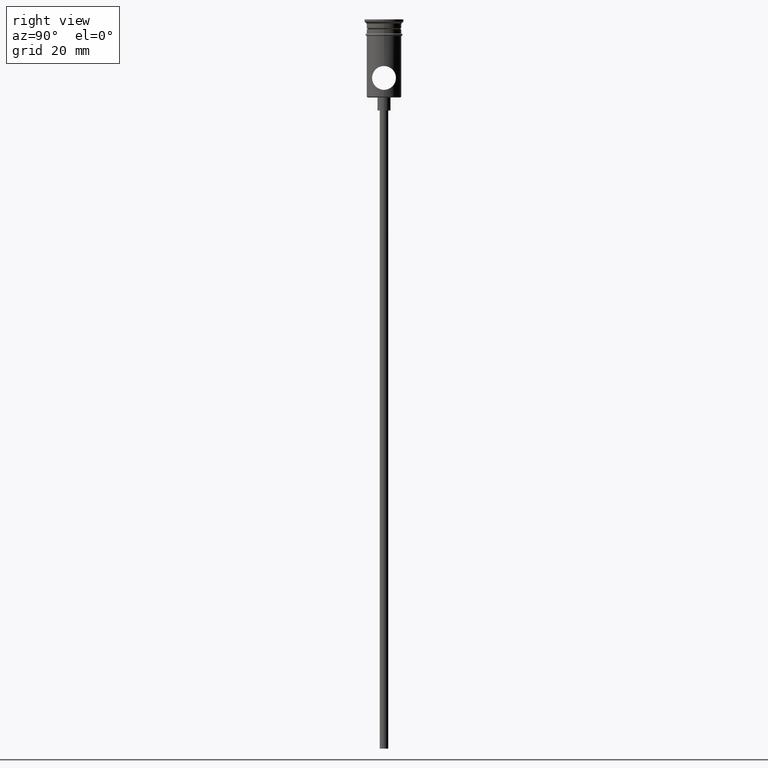
[diagram: clean part render]
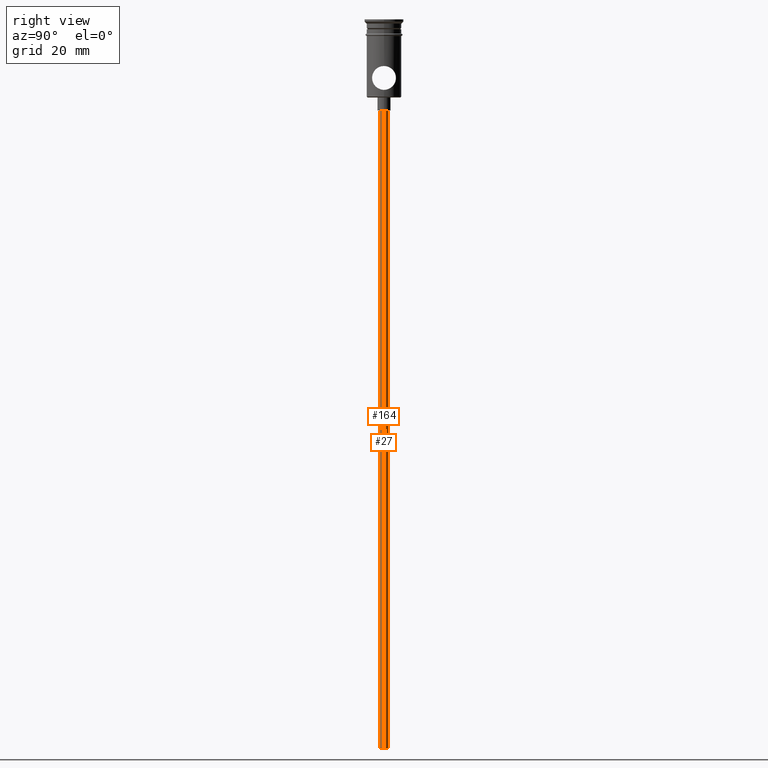
[diagram: same view with one multi-face feature highlighted, each face labeled with its STEP entity id]
A machine part, right view. The highlighted faces form ONE feature: a constant-radius fillet chain: 2 tangent blend faces with common blend radius 1 mm. The faces share edges in the B-rep.
Their STEP definitions:
[1] entity #27 (Cylinder):
#19 = EDGE_CURVE ( 'NONE', #655, #998, #1380, .T. ) ;
#27 = ADVANCED_FACE ( 'NONE', ( #329 ), #989, .T. ) ;
#90 = DIRECTION ( 'NONE',  ( -1.000000000000000000, 0.000000000000000000, 0.000000000000000000 ) ) ;
#193 = AXIS2_PLACEMENT_3D ( 'NONE', #743, #960, #90 ) ;
#210 = DIRECTION ( 'NONE',  ( -0.000000000000000000, -0.000000000000000000, 1.000000000000000000 ) ) ;
#222 = EDGE_CURVE ( 'NONE', #655, #767, #607, .T. ) ;
#257 = ORIENTED_EDGE ( 'NONE', *, *, #1396, .T. ) ;
#258 = DIRECTION ( 'NONE',  ( -0.000000000000000000, -0.000000000000000000, 1.000000000000000000 ) ) ;
#325 = CARTESIAN_POINT ( 'NONE',  ( -0.9999999999999997780, 1.224646799147352961E-16, -20.99999999999999645 ) ) ;
#329 = FACE_OUTER_BOUND ( 'NONE', #407, .T. ) ;
#407 = EDGE_LOOP ( 'NONE', ( #658, #510, #257, #1152 ) ) ;
#447 = DIRECTION ( 'NONE',  ( -1.000000000000000000, 0.000000000000000000, 0.000000000000000000 ) ) ;
#465 = EDGE_CURVE ( 'NONE', #998, #898, #592, .T. ) ;
#510 = ORIENTED_EDGE ( 'NONE', *, *, #222, .T. ) ;
#537 = DIRECTION ( 'NONE',  ( 1.000000000000000000, 0.000000000000000000, 0.000000000000000000 ) ) ;
#551 = CARTESIAN_POINT ( 'NONE',  ( 0.000000000000000000, 0.000000000000000000, -20.99999999999999645 ) ) ;
#592 = LINE ( 'NONE', #1237, #1093 ) ;
#606 = AXIS2_PLACEMENT_3D ( 'NONE', #551, #1120, #447 ) ;
#607 = LINE ( 'NONE', #834, #1148 ) ;
#618 = CARTESIAN_POINT ( 'NONE',  ( -0.9999999999999997780, 1.224646799147352961E-16, -167.9999999999999716 ) ) ;
#655 = VERTEX_POINT ( 'NONE', #618 ) ;
#658 = ORIENTED_EDGE ( 'NONE', *, *, #19, .F. ) ;
#743 = CARTESIAN_POINT ( 'NONE',  ( 0.000000000000000000, 0.000000000000000000, -167.9999999999999716 ) ) ;
#756 = CARTESIAN_POINT ( 'NONE',  ( 0.9999999999999997780, 0.000000000000000000, -20.99999999999999645 ) ) ;
#767 = VERTEX_POINT ( 'NONE', #325 ) ;
#827 = DIRECTION ( 'NONE',  ( -0.000000000000000000, -0.000000000000000000, 1.000000000000000000 ) ) ;
#834 = CARTESIAN_POINT ( 'NONE',  ( -0.9999999999999997780, 1.224646799147352961E-16, -167.9999999999999716 ) ) ;
#898 = VERTEX_POINT ( 'NONE', #756 ) ;
#922 = AXIS2_PLACEMENT_3D ( 'NONE', #1395, #210, #537 ) ;
#960 = DIRECTION ( 'NONE',  ( 0.000000000000000000, 0.000000000000000000, -1.000000000000000000 ) ) ;
#989 = CYLINDRICAL_SURFACE ( 'NONE', #922, 0.9999999999999997780 ) ;
#998 = VERTEX_POINT ( 'NONE', #1123 ) ;
#1093 = VECTOR ( 'NONE', #258, 1000.000000000000000 ) ;
#1120 = DIRECTION ( 'NONE',  ( 0.000000000000000000, 0.000000000000000000, -1.000000000000000000 ) ) ;
#1123 = CARTESIAN_POINT ( 'NONE',  ( 0.9999999999999997780, 0.000000000000000000, -167.9999999999999716 ) ) ;
#1148 = VECTOR ( 'NONE', #827, 1000.000000000000000 ) ;
#1152 = ORIENTED_EDGE ( 'NONE', *, *, #465, .F. ) ;
#1237 = CARTESIAN_POINT ( 'NONE',  ( 0.9999999999999997780, 0.000000000000000000, -167.9999999999999716 ) ) ;
#1317 = CIRCLE ( 'NONE', #606, 0.9999999999999997780 ) ;
#1380 = CIRCLE ( 'NONE', #193, 0.9999999999999997780 ) ;
#1395 = CARTESIAN_POINT ( 'NONE',  ( 0.000000000000000000, 0.000000000000000000, -167.9999999999999716 ) ) ;
#1396 = EDGE_CURVE ( 'NONE', #767, #898, #1317, .T. ) ;
[2] entity #164 (Cylinder):
#24 = CARTESIAN_POINT ( 'NONE',  ( 0.000000000000000000, 0.000000000000000000, -167.9999999999999716 ) ) ;
#55 = CARTESIAN_POINT ( 'NONE',  ( 0.000000000000000000, 0.000000000000000000, -167.9999999999999716 ) ) ;
#63 = DIRECTION ( 'NONE',  ( -1.000000000000000000, 0.000000000000000000, 0.000000000000000000 ) ) ;
#69 = CYLINDRICAL_SURFACE ( 'NONE', #881, 0.9999999999999997780 ) ;
#92 = ORIENTED_EDGE ( 'NONE', *, *, #1071, .F. ) ;
#164 = ADVANCED_FACE ( 'NONE', ( #1166 ), #69, .T. ) ;
#190 = ORIENTED_EDGE ( 'NONE', *, *, #1103, .T. ) ;
#192 = ORIENTED_EDGE ( 'NONE', *, *, #465, .T. ) ;
#222 = EDGE_CURVE ( 'NONE', #655, #767, #607, .T. ) ;
#258 = DIRECTION ( 'NONE',  ( -0.000000000000000000, -0.000000000000000000, 1.000000000000000000 ) ) ;
#325 = CARTESIAN_POINT ( 'NONE',  ( -0.9999999999999997780, 1.224646799147352961E-16, -20.99999999999999645 ) ) ;
#367 = EDGE_LOOP ( 'NONE', ( #855, #92, #192, #190 ) ) ;
#465 = EDGE_CURVE ( 'NONE', #998, #898, #592, .T. ) ;
#564 = DIRECTION ( 'NONE',  ( -1.000000000000000000, 0.000000000000000000, 0.000000000000000000 ) ) ;
#592 = LINE ( 'NONE', #1237, #1093 ) ;
#600 = DIRECTION ( 'NONE',  ( -0.000000000000000000, -0.000000000000000000, 1.000000000000000000 ) ) ;
#607 = LINE ( 'NONE', #834, #1148 ) ;
#618 = CARTESIAN_POINT ( 'NONE',  ( -0.9999999999999997780, 1.224646799147352961E-16, -167.9999999999999716 ) ) ;
#655 = VERTEX_POINT ( 'NONE', #618 ) ;
#700 = AXIS2_PLACEMENT_3D ( 'NONE', #933, #919, #63 ) ;
#756 = CARTESIAN_POINT ( 'NONE',  ( 0.9999999999999997780, 0.000000000000000000, -20.99999999999999645 ) ) ;
#767 = VERTEX_POINT ( 'NONE', #325 ) ;
#811 = DIRECTION ( 'NONE',  ( 1.000000000000000000, 0.000000000000000000, 0.000000000000000000 ) ) ;
#816 = CIRCLE ( 'NONE', #1111, 0.9999999999999997780 ) ;
#827 = DIRECTION ( 'NONE',  ( -0.000000000000000000, -0.000000000000000000, 1.000000000000000000 ) ) ;
#834 = CARTESIAN_POINT ( 'NONE',  ( -0.9999999999999997780, 1.224646799147352961E-16, -167.9999999999999716 ) ) ;
#855 = ORIENTED_EDGE ( 'NONE', *, *, #222, .F. ) ;
#881 = AXIS2_PLACEMENT_3D ( 'NONE', #55, #600, #811 ) ;
#898 = VERTEX_POINT ( 'NONE', #756 ) ;
#902 = DIRECTION ( 'NONE',  ( 0.000000000000000000, 0.000000000000000000, -1.000000000000000000 ) ) ;
#919 = DIRECTION ( 'NONE',  ( 0.000000000000000000, 0.000000000000000000, -1.000000000000000000 ) ) ;
#933 = CARTESIAN_POINT ( 'NONE',  ( 0.000000000000000000, 0.000000000000000000, -20.99999999999999645 ) ) ;
#998 = VERTEX_POINT ( 'NONE', #1123 ) ;
#1071 = EDGE_CURVE ( 'NONE', #998, #655, #816, .T. ) ;
#1093 = VECTOR ( 'NONE', #258, 1000.000000000000000 ) ;
#1103 = EDGE_CURVE ( 'NONE', #898, #767, #1296, .T. ) ;
#1111 = AXIS2_PLACEMENT_3D ( 'NONE', #24, #902, #564 ) ;
#1123 = CARTESIAN_POINT ( 'NONE',  ( 0.9999999999999997780, 0.000000000000000000, -167.9999999999999716 ) ) ;
#1148 = VECTOR ( 'NONE', #827, 1000.000000000000000 ) ;
#1166 = FACE_OUTER_BOUND ( 'NONE', #367, .T. ) ;
#1237 = CARTESIAN_POINT ( 'NONE',  ( 0.9999999999999997780, 0.000000000000000000, -167.9999999999999716 ) ) ;
#1296 = CIRCLE ( 'NONE', #700, 0.9999999999999997780 ) ;